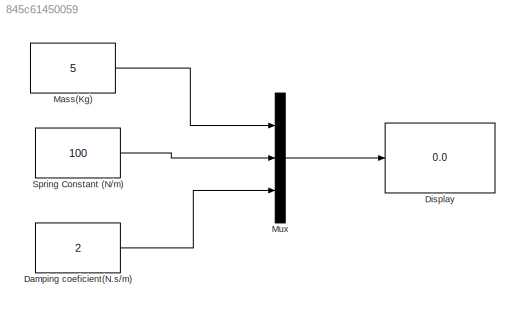
MODEL slx_845c61450059
KIND model
CONFIG AbsTol = auto
CONFIG EnableMultiTasking = off
CONFIG FixedStep = auto
CONFIG MaxStep = auto
CONFIG MinStep = auto
CONFIG RelTol = 1e-3
CONFIG SampleTimeConstraint = Unconstrained
CONFIG SolverName = VariableStepAuto
CONFIG StartTime = 0.0
CONFIG StopTime = 10.0
BLOCK [Constant] Damping coeficient(N.s//m)
  Value = 2
BLOCK [Display] Display
  Decimation = 1
  Ports = [1]
BLOCK [Constant] Mass(Kg)
  Value = 5
BLOCK [Mux] Mux
  DisplayOption = bar
  Inputs = 3
  Ports = [3, 1]
BLOCK [Constant] Spring Constant (N//m)
  Value = 100
LINE Damping coeficient(N.s//m):1 -> Mux:3
LINE Mass(Kg):1 -> Mux:1
LINE Mux:1 -> Display:1
LINE Spring Constant (N//m):1 -> Mux:2
